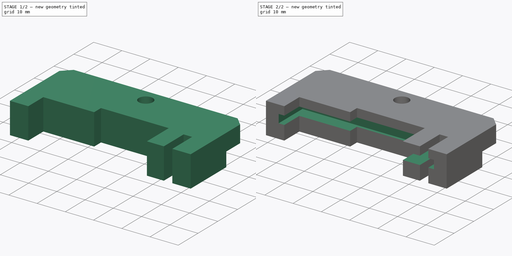
[diagram: build sequence overview — one tinted view per stage of 2, left to right]
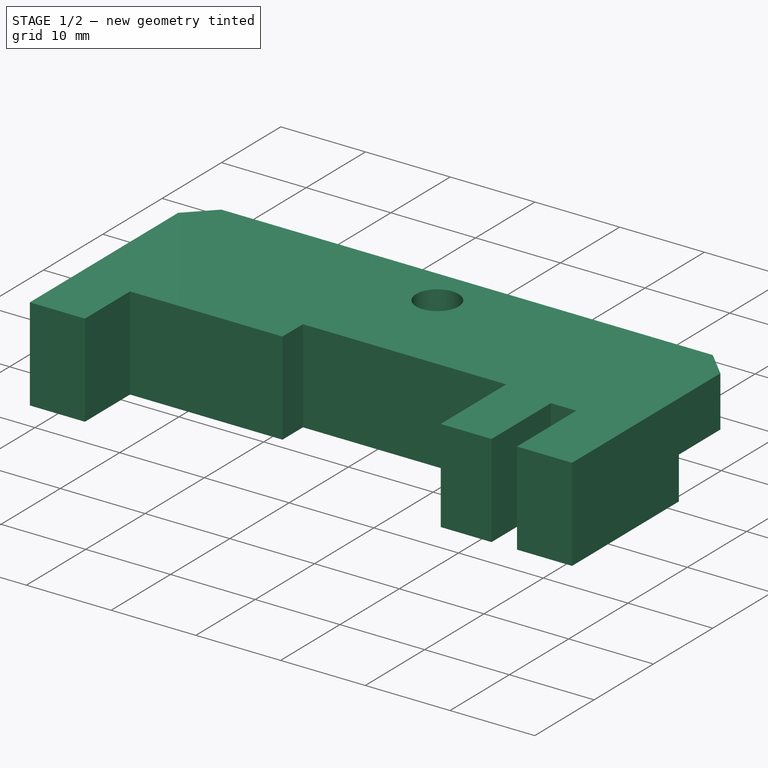
[diagram: stage 1 of 2 — iso view after this stage's code; geometry added in this stage tinted green]
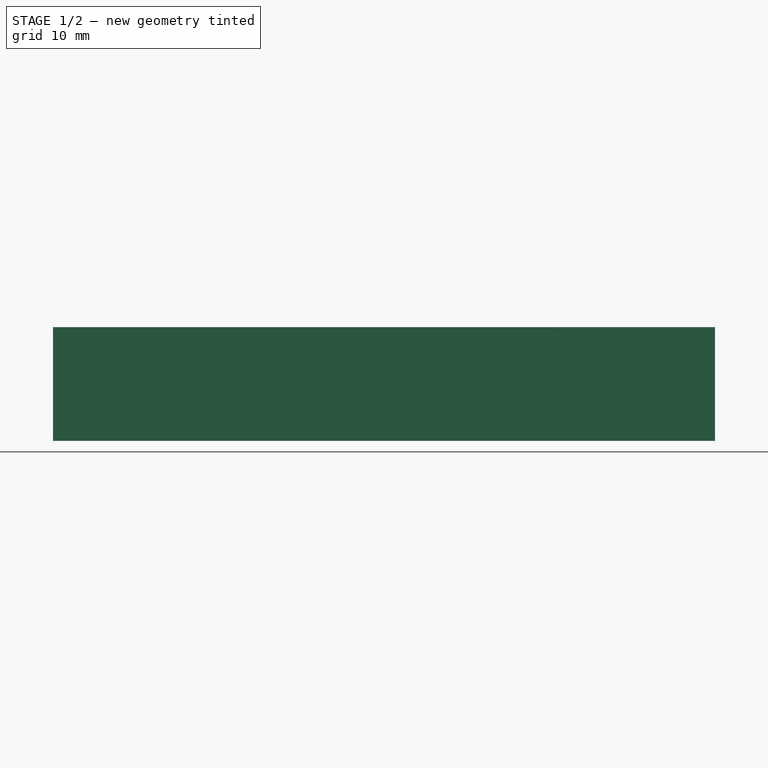
[diagram: stage 1 of 2 — front view after this stage's code; geometry added in this stage tinted green]
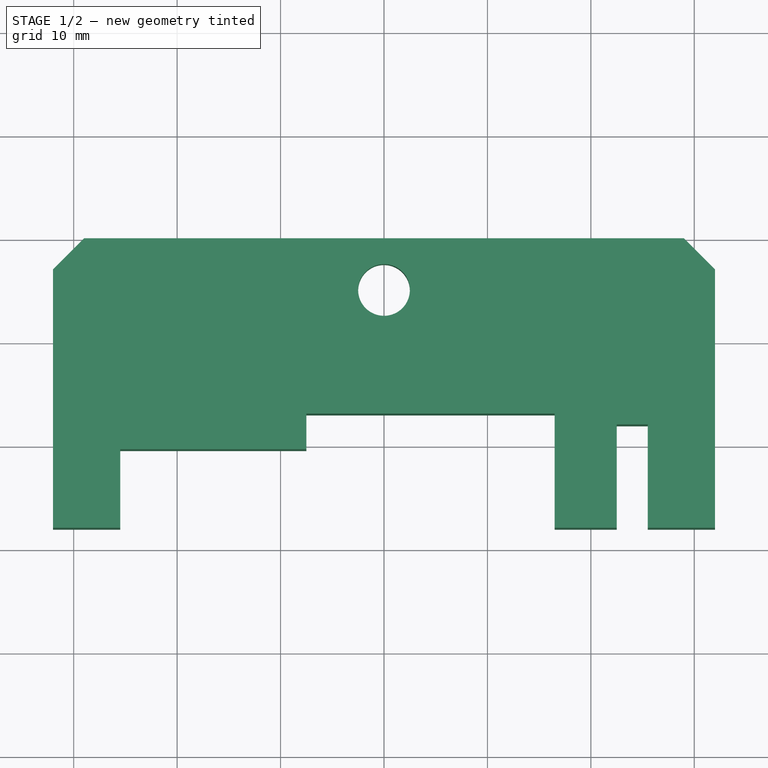
[diagram: stage 1 of 2 — top view after this stage's code; geometry added in this stage tinted green]
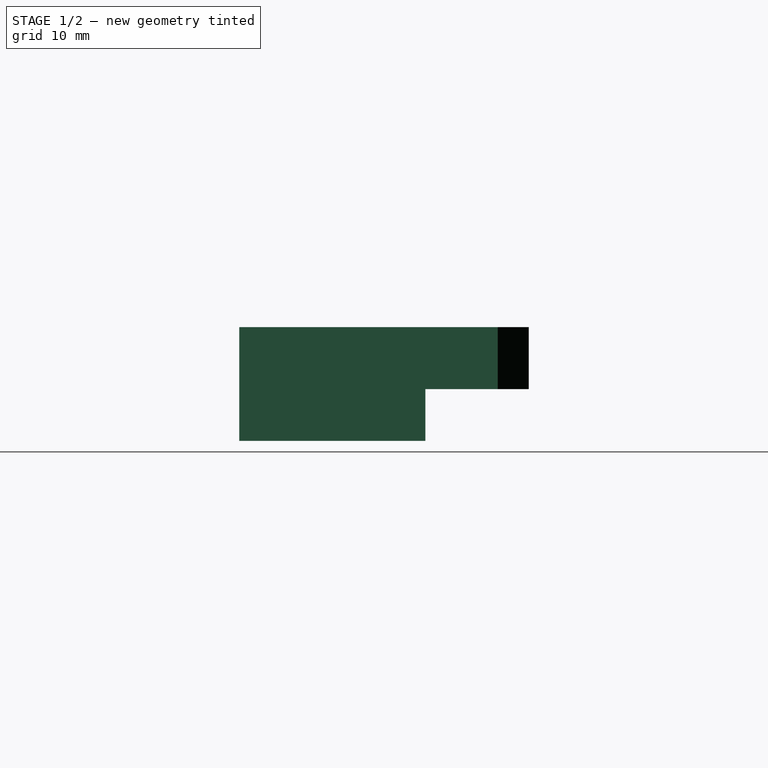
[diagram: stage 1 of 2 — right view after this stage's code; geometry added in this stage tinted green]
FCSTD DOCUMENT  (FreeCAD 0.19R24267 +148 (Git))
Label: ArduinoSupport1
License: All rights reserved
LicenseURL: http://en.wikipedia.org/wiki/All_rights_reserved
objects: Sketcher::SketchObject×4, PartDesign::Pocket×3, PartDesign::Pad×1, PartDesign::Body×1
note: 13 computed .brp shape members not serialized (recipe doc carries the construction recipe); baked Part::Feature solids carry a one-line shape summary decoded from their .brp

FEATURE [Sketcher::SketchObject] Sketch
  FullyConstrained = true
  MapMode = 5
  Support = -> [XY_Plane]
  sketch-geometry (17):
    g0: LineSegment StartX=-32 StartY=-28 StartZ=0 EndX=-32 EndY=-3 EndZ=0
    g1: LineSegment StartX=32 StartY=-3 StartZ=0 EndX=32 EndY=-28 EndZ=0
    g2: LineSegment StartX=-29 StartY=4e-16 StartZ=0 EndX=29 EndY=0 EndZ=0
    g3: LineSegment StartX=-32 StartY=-3 StartZ=0 EndX=-29 EndY=4e-16 EndZ=0
    g4: LineSegment StartX=29 StartY=0 StartZ=0 EndX=32 EndY=-3 EndZ=0
    g5: LineSegment StartX=-32 StartY=-28 StartZ=0 EndX=-25.5 EndY=-28 EndZ=0
    g6: LineSegment StartX=-25.5 StartY=-28 StartZ=0 EndX=-25.5 EndY=-20.4 EndZ=0
    g7: LineSegment StartX=-25.5 StartY=-20.4 StartZ=0 EndX=-7.5 EndY=-20.4 EndZ=0
    g8: LineSegment StartX=-7.5 StartY=-20.4 StartZ=0 EndX=-7.5 EndY=-16.95 EndZ=0
    g9: LineSegment StartX=-7.5 StartY=-16.95 StartZ=0 EndX=16.5 EndY=-16.95 EndZ=0
    g10: LineSegment StartX=16.5 StartY=-16.95 StartZ=0 EndX=16.5 EndY=-28 EndZ=0
    g11: LineSegment StartX=16.5 StartY=-28 StartZ=0 EndX=22.5 EndY=-28 EndZ=0
    g12: LineSegment StartX=22.5 StartY=-28 StartZ=0 EndX=22.5 EndY=-18 EndZ=0
    g13: LineSegment StartX=22.5 StartY=-18 StartZ=0 EndX=25.5 EndY=-18 EndZ=0
    g14: LineSegment StartX=25.5 StartY=-18 StartZ=0 EndX=25.5 EndY=-28 EndZ=0
    g15: LineSegment StartX=25.5 StartY=-28 StartZ=0 EndX=32 EndY=-28 EndZ=0
    g16: Circle CenterX=0 CenterY=-5 CenterZ=0 NormalX=0 NormalY=0 NormalZ=1 AngleXU=0 Radius=2.5
  constraints (48):
    c: Vertical(g0)
    c: Symmetric(g1,g0,g-2)
    c: Coincident(g2,g4)
    c: Coincident(g1,g4)
    c: Coincident(g2,g3)
    c: Coincident(g0,g3)
    c: Symmetric(g2,g2,g-2)
    c: Angle(g3,g2) = 2.35619
    c: Symmetric(g1,g0,g-2)
    c: DistanceX(g0,g2) = 3
    c: PointOnObject(g-1,g2)
    c: Coincident(g0,g5)
    c: Horizontal(g5)
    c: Coincident(g5,g6)
    c: Vertical(g6)
    c: Coincident(g6,g7)
    c: Horizontal(g7)
    c: Coincident(g7,g8)
    c: Vertical(g8)
    c: Coincident(g8,g9)
    c: Horizontal(g9)
    c: Coincident(g9,g10)
    c: Vertical(g10)
    c: Coincident(g10,g11)
    c: Horizontal(g11)
    c: Coincident(g11,g12)
    c: Vertical(g12)
    c: Coincident(g12,g13)
    c: Horizontal(g13)
    c: Coincident(g13,g14)
    c: Coincident(g14,g15)
    c: Coincident(g15,g1)
    c: Horizontal(g15)
    c: Vertical(g14)
    c: PointOnObject(g10,g5)
    c: DistanceX(g0,g5) = 6.5
    c: DistanceX(g14,g1) = 6.5
    c: DistanceX(g11,g14) = 3
    c: DistanceY(g14,g13) = 10
    c: DistanceY(g5,g6) = 7.6
    c: DistanceY(g10,g9) = 11.05
    c: DistanceX(g6,g9) = 42
    c: DistanceX(g0,g1) = 64
    c: DistanceX(g8,g9) = 24
    c: DistanceY(g1,g2) = 28
    c: PointOnObject(g16,g-2)
    c: Diameter(g16) = 5
    c: DistanceY(g16,g-1) = 5
FEATURE [PartDesign::Pad] Pad
  Direction = (1,1,1)
  Length = 11
  Length2 = 100
  Profile = -> Sketch
  Refine = true
  Type = 0
FEATURE [Sketcher::SketchObject] Sketch001
  FullyConstrained = false
  MapMode = 5
  Placement = pos=(0,0,0) rot=(1,0,0;3.14159rad)
  Support = -> [Pad]
  sketch-geometry (4):
    g0: LineSegment StartX=-36.2868 StartY=10 StartZ=0 EndX=36.2868 EndY=10 EndZ=0
    g1: LineSegment StartX=36.2868 StartY=10 StartZ=0 EndX=36.2868 EndY=0 EndZ=0
    g2: LineSegment StartX=36.2868 StartY=0 StartZ=0 EndX=-36.2868 EndY=0 EndZ=0
    g3: LineSegment StartX=-36.2868 StartY=0 StartZ=0 EndX=-36.2868 EndY=10 EndZ=0
  constraints (10):
    c: Coincident(g0,g1)
    c: Coincident(g1,g2)
    c: Coincident(g2,g3)
    c: Coincident(g3,g0)
    c: Horizontal(g0)
    c: Vertical(g1)
    c: Vertical(g3)
    c: PointOnObject(g1,g-1)
    c: Symmetric(g1,g2,g-2)
    c: DistanceY(g1,g0) = 10
FEATURE [PartDesign::Pocket] Pocket
  BaseFeature = -> Pad
  Length = 5
  Length2 = 100
  Profile = -> Sketch001
  Refine = true
  Type = 0
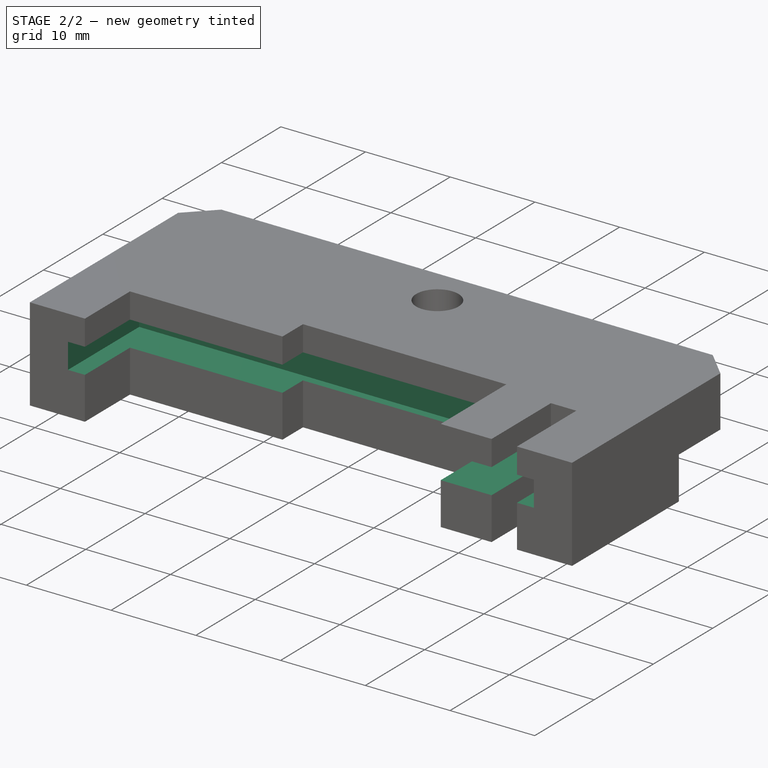
[diagram: stage 2 of 2 — iso view after this stage's code; geometry added in this stage tinted green]
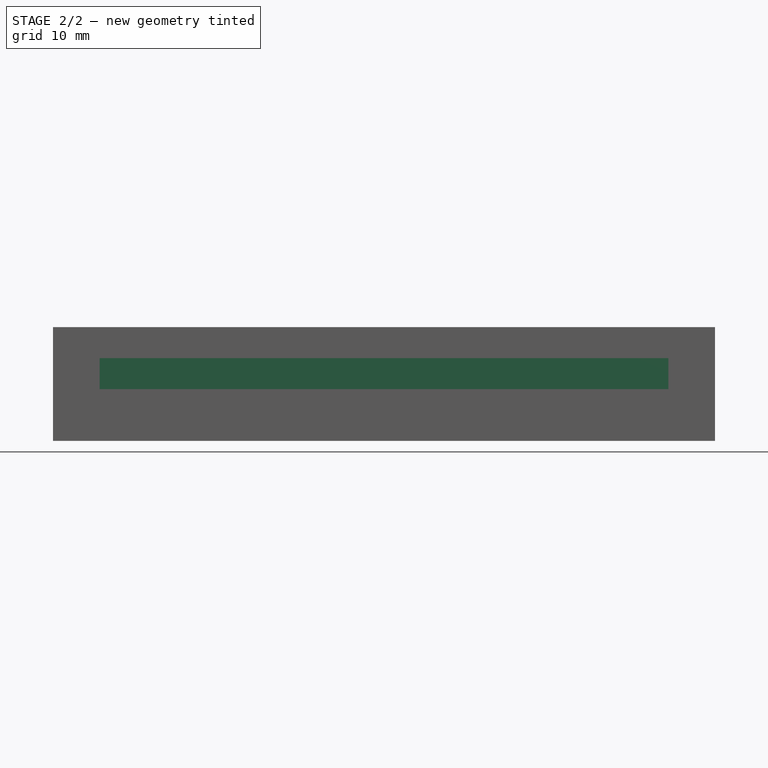
[diagram: stage 2 of 2 — front view after this stage's code; geometry added in this stage tinted green]
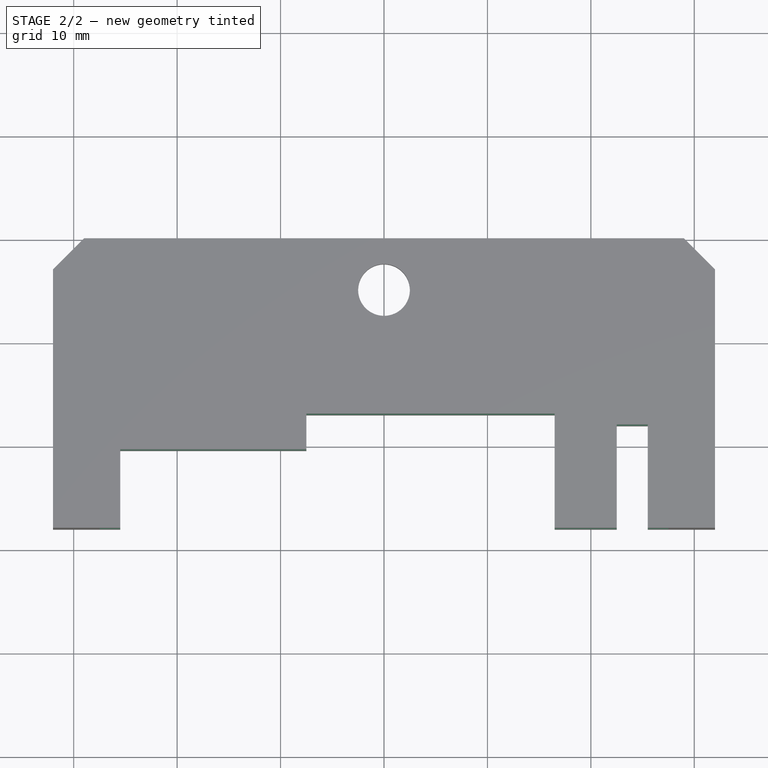
[diagram: stage 2 of 2 — top view after this stage's code; geometry added in this stage tinted green]
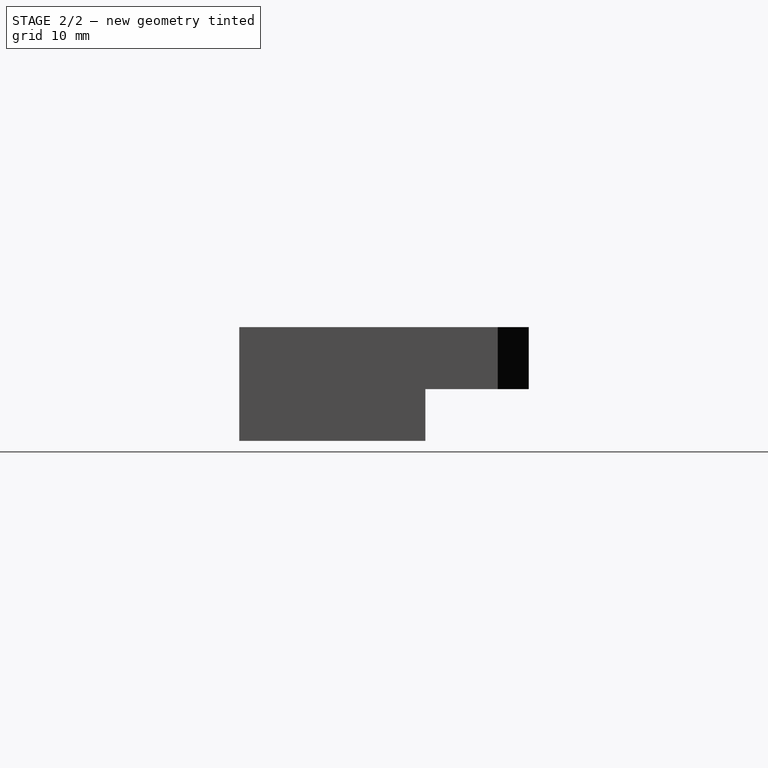
[diagram: stage 2 of 2 — right view after this stage's code; geometry added in this stage tinted green]
FEATURE [Sketcher::SketchObject] Sketch002
  ExternalGeometry = -> [Pocket]
  FullyConstrained = true
  MapMode = 5
  Placement = pos=(0,0,5) rot=(1,0,0;3.14159rad)
  Support = -> [Pocket]
  sketch-geometry (7):
    g0: LineSegment StartX=3.98372 StartY=5 StartZ=0 EndX=1.99186 EndY=8.45 EndZ=0
    g1: LineSegment StartX=1.99186 StartY=8.45 StartZ=0 EndX=-1.99186 EndY=8.45 EndZ=0
    g2: LineSegment StartX=-1.99186 StartY=8.45 StartZ=0 EndX=-3.98372 EndY=5 EndZ=0
    g3: LineSegment StartX=-3.98372 StartY=5 StartZ=0 EndX=-1.99186 EndY=1.55 EndZ=0
    g4: LineSegment StartX=-1.99186 StartY=1.55 StartZ=0 EndX=1.99186 EndY=1.55 EndZ=0
    g5: LineSegment StartX=1.99186 StartY=1.55 StartZ=0 EndX=3.98372 EndY=5 EndZ=0
    g6: Circle CenterX=0 CenterY=5 CenterZ=0 NormalX=0 NormalY=0 NormalZ=1 AngleXU=0 Radius=3.98372
  constraints (16):
    c: Coincident(g0,g1)
    c: Coincident(g1,g2)
    c: Coincident(g2,g3)
    c: Coincident(g3,g4)
    c: Coincident(g4,g5)
    c: Coincident(g5,g0)
    c: Equal(g0, g1-g5) x5
    c: PointOnObject(g0,g6)
    c: PointOnObject(g1,g6)
    c: PointOnObject(g2,g6)
    c: PointOnObject(g3,g6)
    c: PointOnObject(g4,g6)
    c: PointOnObject(g5,g6)
    c: Coincident(g6,g-3)
    c: Horizontal(g4)
    c: Distance(g3,g0) = 6.9
FEATURE [PartDesign::Pocket] Pocket001  label="HoleForNut"
  BaseFeature = -> Pocket
  Length = 3.05
  Length2 = 100
  Profile = -> Sketch002
  Refine = true
  Type = 0
FEATURE [Sketcher::SketchObject] Sketch003
  FullyConstrained = true
  MapMode = 5
  Placement = pos=(0,-28,0) rot=(1,0,0;1.5708rad)
  Support = -> [Pocket001]
  sketch-geometry (4):
    g0: LineSegment StartX=-27.5 StartY=5 StartZ=0 EndX=27.5 EndY=5 EndZ=0
    g1: LineSegment StartX=27.5 StartY=5 StartZ=0 EndX=27.5 EndY=8 EndZ=0
    g2: LineSegment StartX=27.5 StartY=8 StartZ=0 EndX=-27.5 EndY=8 EndZ=0
    g3: LineSegment StartX=-27.5 StartY=8 StartZ=0 EndX=-27.5 EndY=5 EndZ=0
  constraints (11):
    c: Coincident(g0,g1)
    c: Coincident(g1,g2)
    c: Coincident(g2,g3)
    c: Coincident(g3,g0)
    c: Horizontal(g2)
    c: Vertical(g1)
    c: Vertical(g3)
    c: Symmetric(g0,g0,g-2)
    c: DistanceY(g-1,g0) = 5
    c: DistanceY(g0,g1) = 3
    c: DistanceX(g2,g1) = 55
FEATURE [PartDesign::Pocket] Pocket002
  BaseFeature = -> Pocket001
  Length = 12
  Length2 = 100
  Profile = -> Sketch003
  Refine = true
  Type = 0
FEATURE [PartDesign::Body] Body
  Group = -> [Sketch,Pad,Sketch001,Pocket,Sketch002,Pocket001,Sketch003,Pocket002]
  Origin = -> Origin
  Tip = -> Pocket002
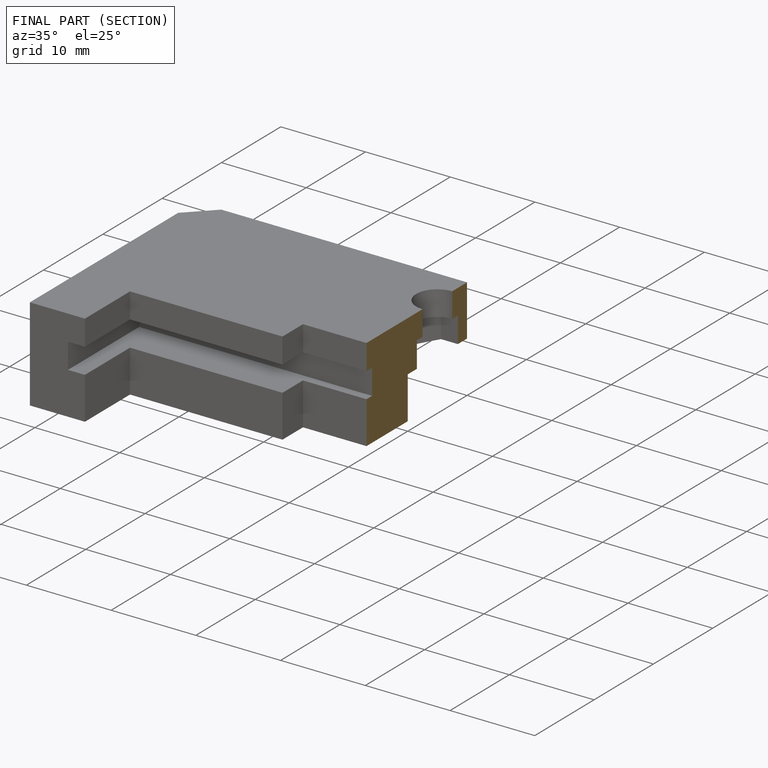
[diagram: finished part — half-section view (interior)]
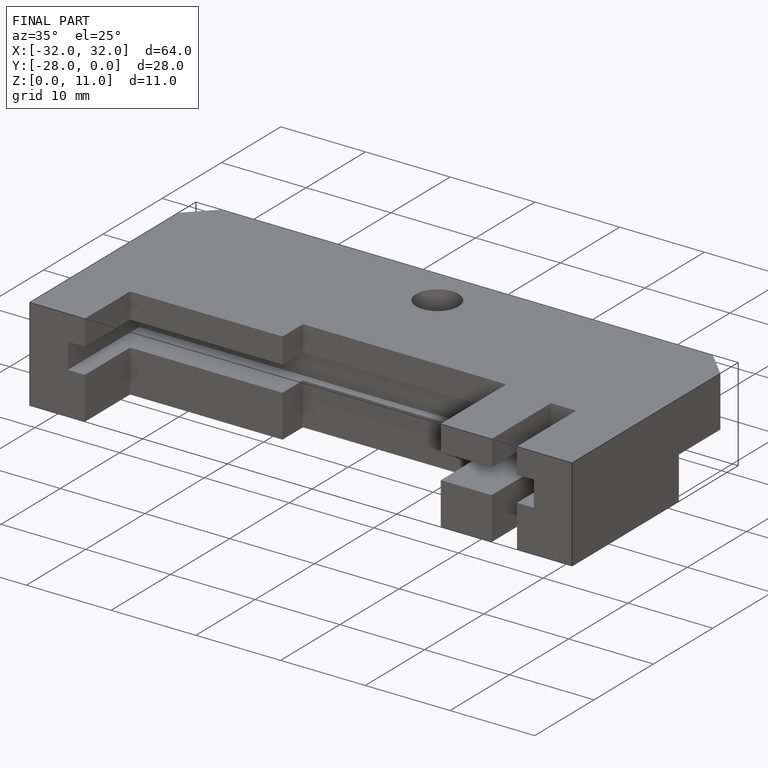
[diagram: finished part — iso view with bounding-box wireframe]
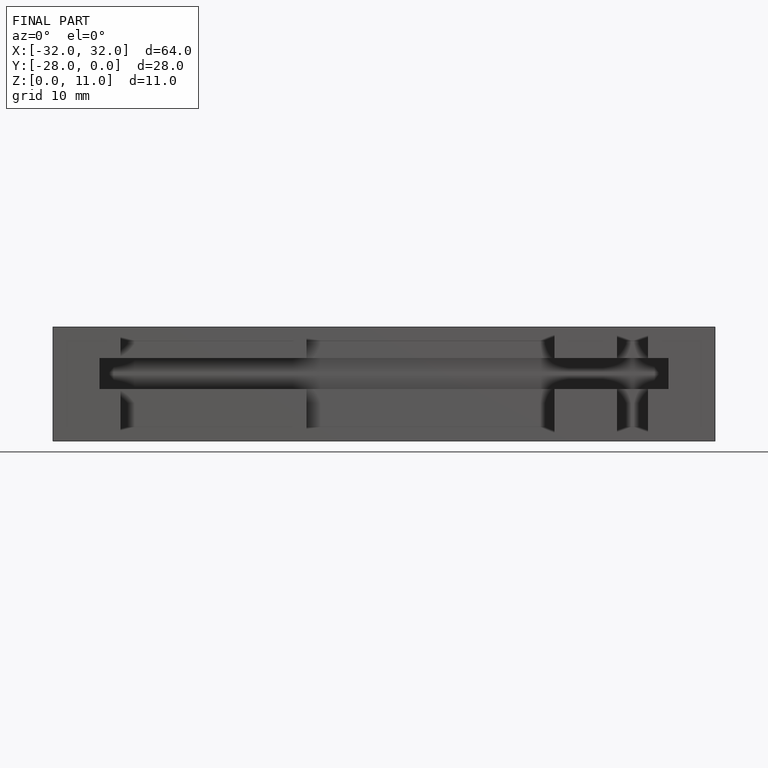
[diagram: finished part — front view with bounding-box wireframe]
